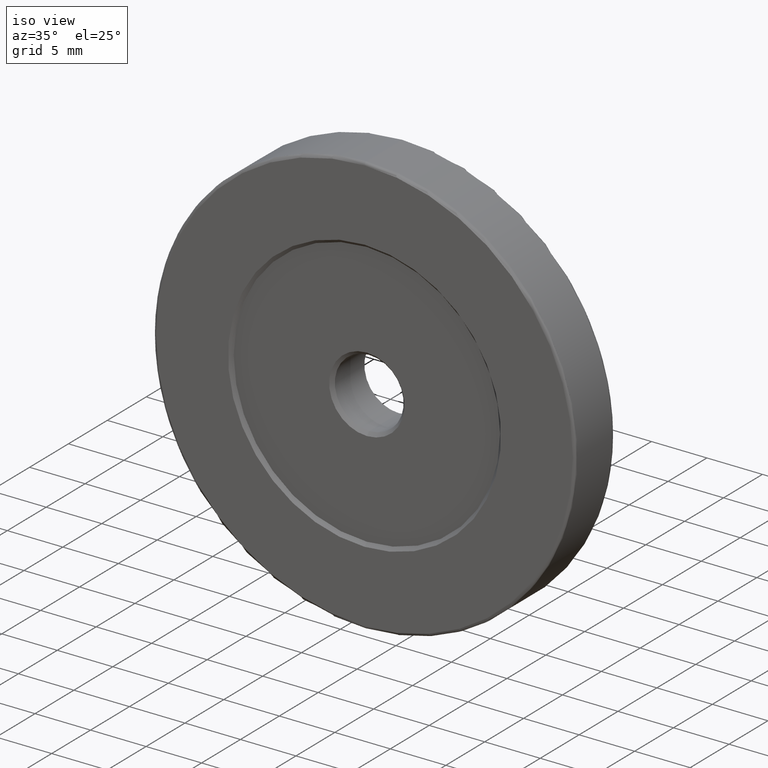
[diagram: clean part render]
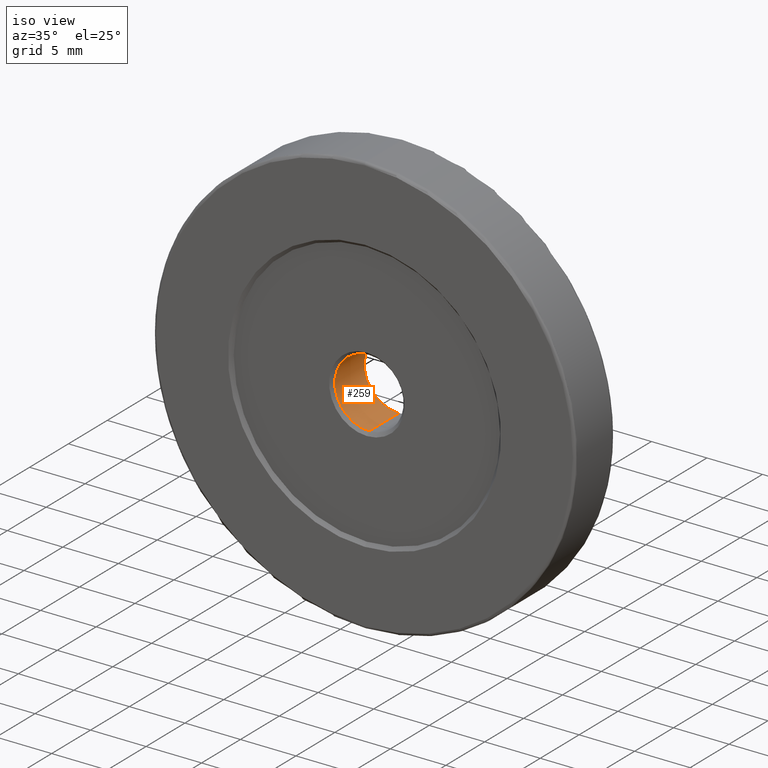
[diagram: same view with one face highlighted and labeled with its STEP entity id]
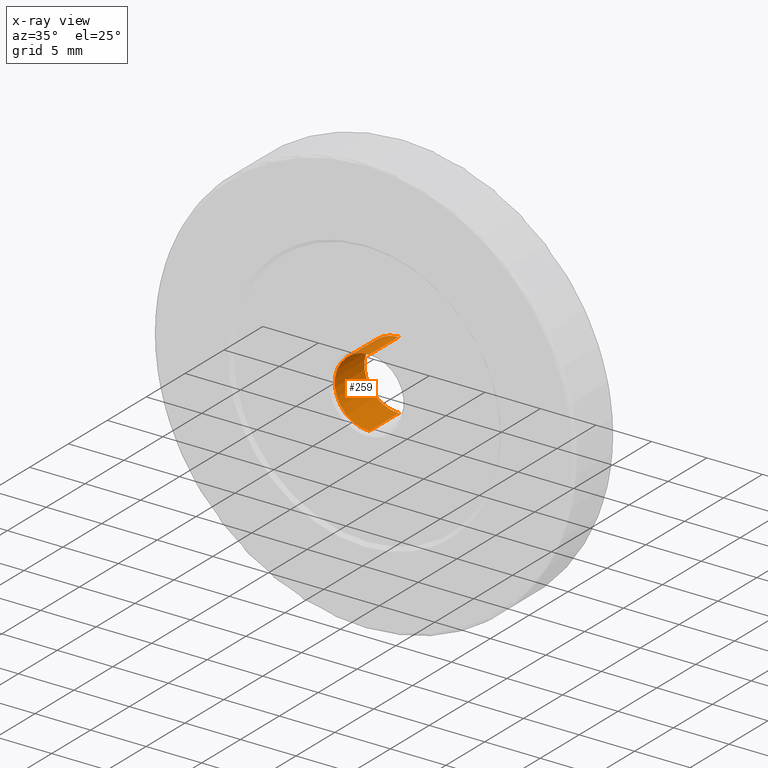
[diagram: x-ray of the same camera — body ghosted, the highlighted face saturated]
A machine part, iso view. The second image highlights one B-rep face of the part: STEP entity #259.
The next image is the same camera in x-ray: the body ghosted, the highlighted face saturated — about 0% of this face is hidden behind the body in this view.
In plain terms, the highlighted cylindrical surface (partial cylindrical patch) has radius 3.1 mm, axis along (-0, 1, -0).
Its self-contained STEP definition (entity closure, byte-faithful):
#3 = CARTESIAN_POINT ( 'NONE',  ( -7.546808913101048510, -0.9935951273027215924, 34.89999999999999858 ) ) ;
#4 = ORIENTED_EDGE ( 'NONE', *, *, #314, .T. ) ;
#21 = LINE ( 'NONE', #268, #115 ) ;
#54 = AXIS2_PLACEMENT_3D ( 'NONE', #104, #301, #482 ) ;
#77 = AXIS2_PLACEMENT_3D ( 'NONE', #425, #174, #371 ) ;
#81 = CYLINDRICAL_SURFACE ( 'NONE', #251, 3.099999999999998757 ) ;
#104 = CARTESIAN_POINT ( 'NONE',  ( -7.546808913101048510, -0.9935951273027215924, 38.00000000000000000 ) ) ;
#115 = VECTOR ( 'NONE', #256, 1000.000000000000000 ) ;
#134 = VECTOR ( 'NONE', #468, 1000.000000000000000 ) ;
#139 = FACE_OUTER_BOUND ( 'NONE', #323, .T. ) ;
#147 = EDGE_CURVE ( 'NONE', #191, #333, #21, .T. ) ;
#173 = ORIENTED_EDGE ( 'NONE', *, *, #345, .T. ) ;
#174 = DIRECTION ( 'NONE',  ( -0.000000000000000000, -1.000000000000000000, -0.000000000000000000 ) ) ;
#181 = ORIENTED_EDGE ( 'NONE', *, *, #147, .F. ) ;
#191 = VERTEX_POINT ( 'NONE', #307 ) ;
#215 = DIRECTION ( 'NONE',  ( -0.000000000000000000, 1.000000000000000000, -0.000000000000000000 ) ) ;
#241 = CIRCLE ( 'NONE', #54, 3.099999999999998757 ) ;
#251 = AXIS2_PLACEMENT_3D ( 'NONE', #519, #215, #507 ) ;
#256 = DIRECTION ( 'NONE',  ( -0.000000000000000000, 1.000000000000000000, -0.000000000000000000 ) ) ;
#259 = ADVANCED_FACE ( 'NONE', ( #139 ), #81, .F. ) ;
#268 = CARTESIAN_POINT ( 'NONE',  ( -7.546808913101048510, -5.393595127302728720, 41.09999999999999432 ) ) ;
#284 = LINE ( 'NONE', #368, #134 ) ;
#301 = DIRECTION ( 'NONE',  ( 0.000000000000000000, 1.000000000000000000, 0.000000000000000000 ) ) ;
#307 = CARTESIAN_POINT ( 'NONE',  ( -7.546808913101048510, -4.793595127302728187, 41.09999999999999432 ) ) ;
#314 = EDGE_CURVE ( 'NONE', #191, #433, #424, .T. ) ;
#323 = EDGE_LOOP ( 'NONE', ( #4, #173, #516, #181 ) ) ;
#333 = VERTEX_POINT ( 'NONE', #378 ) ;
#345 = EDGE_CURVE ( 'NONE', #433, #529, #284, .T. ) ;
#368 = CARTESIAN_POINT ( 'NONE',  ( -7.546808913101048510, -5.393595127302728720, 34.89999999999999858 ) ) ;
#371 = DIRECTION ( 'NONE',  ( 0.000000000000000000, 0.000000000000000000, -1.000000000000000000 ) ) ;
#378 = CARTESIAN_POINT ( 'NONE',  ( -7.546808913101048510, -0.9935951273027215924, 41.09999999999999432 ) ) ;
#424 = CIRCLE ( 'NONE', #77, 3.099999999999998757 ) ;
#425 = CARTESIAN_POINT ( 'NONE',  ( -7.546808913101048510, -4.793595127302728187, 38.00000000000000000 ) ) ;
#432 = CARTESIAN_POINT ( 'NONE',  ( -7.546808913101048510, -4.793595127302728187, 34.89999999999999858 ) ) ;
#433 = VERTEX_POINT ( 'NONE', #432 ) ;
#468 = DIRECTION ( 'NONE',  ( -0.000000000000000000, 1.000000000000000000, -0.000000000000000000 ) ) ;
#482 = DIRECTION ( 'NONE',  ( 0.000000000000000000, 0.000000000000000000, 1.000000000000000000 ) ) ;
#507 = DIRECTION ( 'NONE',  ( 0.000000000000000000, 0.000000000000000000, 1.000000000000000000 ) ) ;
#516 = ORIENTED_EDGE ( 'NONE', *, *, #556, .T. ) ;
#519 = CARTESIAN_POINT ( 'NONE',  ( -7.546808913101048510, -5.393595127302728720, 38.00000000000000000 ) ) ;
#529 = VERTEX_POINT ( 'NONE', #3 ) ;
#556 = EDGE_CURVE ( 'NONE', #529, #333, #241, .T. ) ;